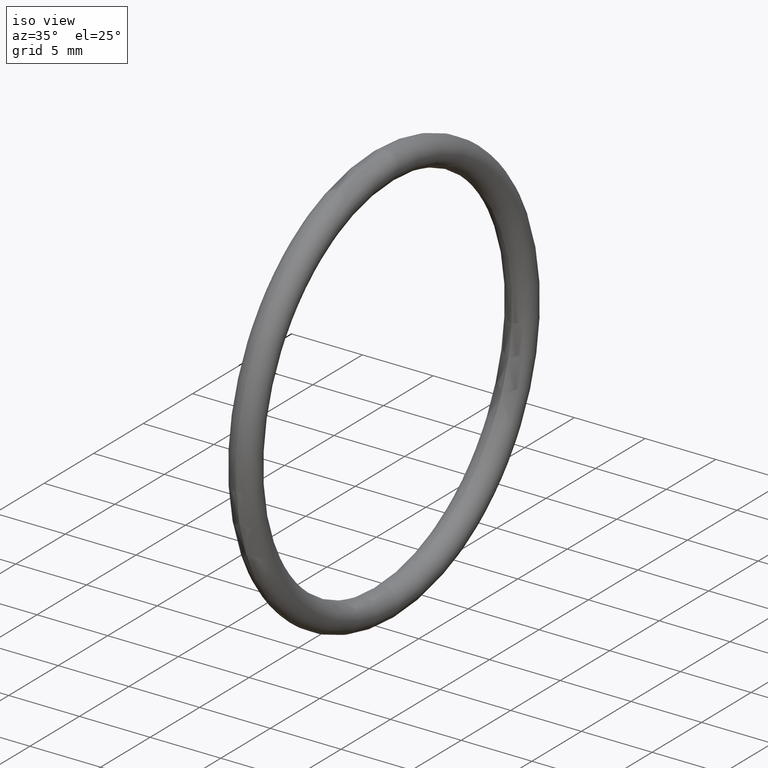
[diagram: clean part render]
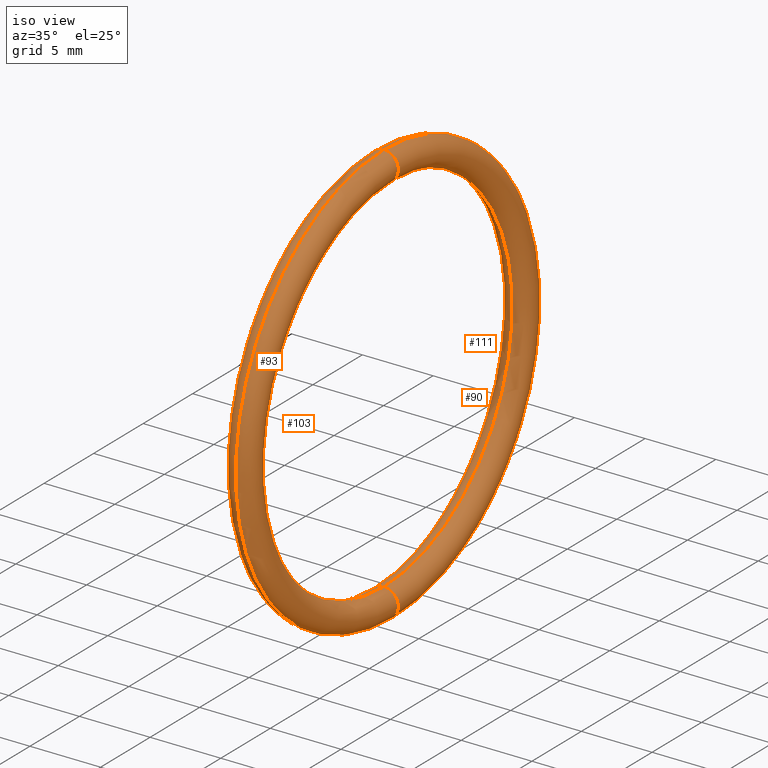
[diagram: same view with one multi-face feature highlighted, each face labeled with its STEP entity id]
A machine part, iso view. The highlighted faces form ONE feature: a constant-radius fillet chain: 4 tangent blend faces with common blend radius 1.016 mm. The faces share edges in the B-rep.
Their STEP definitions:
[1] entity #90 (Torus):
#84 = CARTESIAN_POINT ( 'NONE',  ( 0.1000000000000000700, 0.0000000000000000000, 0.0000000000000000000 ) ) ;
#87 = DIRECTION ( 'NONE',  ( -1.000000000000000000, -0.0000000000000000000, -0.0000000000000000000 ) ) ;
#88 = DIRECTION ( 'NONE',  ( 0.0000000000000000000, 0.0000000000000000000, 1.000000000000000000 ) ) ;
#89 = EDGE_LOOP ( 'NONE', ( #116, #115, #104, #105 ) ) ;
#90 = ADVANCED_FACE ( 'NONE', ( #173 ), #159, .T. ) ;
#95 = EDGE_CURVE ( 'NONE', #97, #106, #129, .T. ) ;
#97 = VERTEX_POINT ( 'NONE', #148 ) ;
#98 = VERTEX_POINT ( 'NONE', #147 ) ;
#99 = VERTEX_POINT ( 'NONE', #146 ) ;
#104 = ORIENTED_EDGE ( 'NONE', *, *, #109, .T. ) ;
#105 = ORIENTED_EDGE ( 'NONE', *, *, #113, .F. ) ;
#106 = VERTEX_POINT ( 'NONE', #162 ) ;
#109 = EDGE_CURVE ( 'NONE', #98, #99, #161, .T. ) ;
#113 = EDGE_CURVE ( 'NONE', #106, #99, #139, .T. ) ;
#114 = EDGE_CURVE ( 'NONE', #97, #98, #174, .T. ) ;
#115 = ORIENTED_EDGE ( 'NONE', *, *, #114, .T. ) ;
#116 = ORIENTED_EDGE ( 'NONE', *, *, #95, .F. ) ;
#124 = AXIS2_PLACEMENT_3D ( 'NONE', #130, #168, #160 ) ;
#125 = DIRECTION ( 'NONE',  ( 0.0000000000000000000, 0.0000000000000000000, -1.000000000000000000 ) ) ;
#126 = DIRECTION ( 'NONE',  ( 0.0000000000000000000, -1.000000000000000000, 0.0000000000000000000 ) ) ;
#127 = CARTESIAN_POINT ( 'NONE',  ( 0.1000000000000000700, 0.0000000000000000000, 0.5500000000000000400 ) ) ;
#128 = AXIS2_PLACEMENT_3D ( 'NONE', #127, #126, #125 ) ;
#129 = CIRCLE ( 'NONE', #128, 0.03999999999999998000 ) ;
#130 = CARTESIAN_POINT ( 'NONE',  ( 0.1000000000000000700, 0.0000000000000000000, 0.0000000000000000000 ) ) ;
#134 = AXIS2_PLACEMENT_3D ( 'NONE', #84, #87, #88 ) ;
#139 = CIRCLE ( 'NONE', #134, 0.5100000000000000100 ) ;
#142 = DIRECTION ( 'NONE',  ( 0.0000000000000000000, -1.224646799147353000E-016, 1.000000000000000000 ) ) ;
#143 = DIRECTION ( 'NONE',  ( -0.0000000000000000000, 1.000000000000000000, 1.224646799147353200E-016 ) ) ;
#144 = CARTESIAN_POINT ( 'NONE',  ( 0.1000000000000000700, 6.735557395310442500E-017, -0.5500000000000000400 ) ) ;
#145 = AXIS2_PLACEMENT_3D ( 'NONE', #144, #143, #142 ) ;
#146 = CARTESIAN_POINT ( 'NONE',  ( 0.1000000000000000700, 6.245698675651502300E-017, -0.5100000000000000100 ) ) ;
#147 = CARTESIAN_POINT ( 'NONE',  ( 0.1000000000000000700, 7.225416114969383900E-017, -0.5899999999999999700 ) ) ;
#148 = CARTESIAN_POINT ( 'NONE',  ( 0.1000000000000000700, 0.0000000000000000000, 0.5899999999999999700 ) ) ;
#159 = TOROIDAL_SURFACE ( 'NONE', #124, 0.5500000000000000400, 0.04000000000000000100 ) ;
#160 = DIRECTION ( 'NONE',  ( 0.0000000000000000000, 0.0000000000000000000, 1.000000000000000000 ) ) ;
#161 = CIRCLE ( 'NONE', #145, 0.03999999999999998000 ) ;
#162 = CARTESIAN_POINT ( 'NONE',  ( 0.1000000000000000700, 0.0000000000000000000, 0.5100000000000000100 ) ) ;
#168 = DIRECTION ( 'NONE',  ( -1.000000000000000000, -0.0000000000000000000, -0.0000000000000000000 ) ) ;
#173 = FACE_OUTER_BOUND ( 'NONE', #89, .T. ) ;
#174 = CIRCLE ( 'NONE', #179, 0.5899999999999999700 ) ;
#176 = DIRECTION ( 'NONE',  ( 0.0000000000000000000, 0.0000000000000000000, 1.000000000000000000 ) ) ;
#177 = DIRECTION ( 'NONE',  ( -1.000000000000000000, -0.0000000000000000000, -0.0000000000000000000 ) ) ;
#178 = CARTESIAN_POINT ( 'NONE',  ( 0.1000000000000000700, 0.0000000000000000000, 0.0000000000000000000 ) ) ;
#179 = AXIS2_PLACEMENT_3D ( 'NONE', #178, #177, #176 ) ;
[2] entity #111 (Torus):
#78 = ORIENTED_EDGE ( 'NONE', *, *, #79, .T. ) ;
#79 = EDGE_CURVE ( 'NONE', #99, #98, #120, .T. ) ;
#84 = CARTESIAN_POINT ( 'NONE',  ( 0.1000000000000000700, 0.0000000000000000000, 0.0000000000000000000 ) ) ;
#85 = DIRECTION ( 'NONE',  ( 0.0000000000000000000, -1.224646799147353000E-016, 1.000000000000000000 ) ) ;
#87 = DIRECTION ( 'NONE',  ( -1.000000000000000000, -0.0000000000000000000, -0.0000000000000000000 ) ) ;
#88 = DIRECTION ( 'NONE',  ( 0.0000000000000000000, 0.0000000000000000000, 1.000000000000000000 ) ) ;
#91 = EDGE_LOOP ( 'NONE', ( #110, #101, #100, #78 ) ) ;
#97 = VERTEX_POINT ( 'NONE', #148 ) ;
#98 = VERTEX_POINT ( 'NONE', #147 ) ;
#99 = VERTEX_POINT ( 'NONE', #146 ) ;
#100 = ORIENTED_EDGE ( 'NONE', *, *, #113, .T. ) ;
#101 = ORIENTED_EDGE ( 'NONE', *, *, #102, .F. ) ;
#102 = EDGE_CURVE ( 'NONE', #106, #97, #157, .T. ) ;
#106 = VERTEX_POINT ( 'NONE', #162 ) ;
#110 = ORIENTED_EDGE ( 'NONE', *, *, #114, .F. ) ;
#111 = ADVANCED_FACE ( 'NONE', ( #141 ), #140, .T. ) ;
#113 = EDGE_CURVE ( 'NONE', #106, #99, #139, .T. ) ;
#114 = EDGE_CURVE ( 'NONE', #97, #98, #174, .T. ) ;
#120 = CIRCLE ( 'NONE', #123, 0.03999999999999998000 ) ;
#121 = DIRECTION ( 'NONE',  ( -0.0000000000000000000, 1.000000000000000000, 1.224646799147353200E-016 ) ) ;
#122 = CARTESIAN_POINT ( 'NONE',  ( 0.1000000000000000700, 6.735557395310442500E-017, -0.5500000000000000400 ) ) ;
#123 = AXIS2_PLACEMENT_3D ( 'NONE', #122, #121, #85 ) ;
#134 = AXIS2_PLACEMENT_3D ( 'NONE', #84, #87, #88 ) ;
#135 = DIRECTION ( 'NONE',  ( 0.0000000000000000000, 0.0000000000000000000, 1.000000000000000000 ) ) ;
#136 = DIRECTION ( 'NONE',  ( -1.000000000000000000, -0.0000000000000000000, -0.0000000000000000000 ) ) ;
#137 = CARTESIAN_POINT ( 'NONE',  ( 0.1000000000000000700, 0.0000000000000000000, 0.0000000000000000000 ) ) ;
#138 = AXIS2_PLACEMENT_3D ( 'NONE', #137, #136, #135 ) ;
#139 = CIRCLE ( 'NONE', #134, 0.5100000000000000100 ) ;
#140 = TOROIDAL_SURFACE ( 'NONE', #138, 0.5500000000000000400, 0.04000000000000000100 ) ;
#141 = FACE_OUTER_BOUND ( 'NONE', #91, .T. ) ;
#146 = CARTESIAN_POINT ( 'NONE',  ( 0.1000000000000000700, 6.245698675651502300E-017, -0.5100000000000000100 ) ) ;
#147 = CARTESIAN_POINT ( 'NONE',  ( 0.1000000000000000700, 7.225416114969383900E-017, -0.5899999999999999700 ) ) ;
#148 = CARTESIAN_POINT ( 'NONE',  ( 0.1000000000000000700, 0.0000000000000000000, 0.5899999999999999700 ) ) ;
#153 = DIRECTION ( 'NONE',  ( 0.0000000000000000000, 0.0000000000000000000, -1.000000000000000000 ) ) ;
#154 = DIRECTION ( 'NONE',  ( 0.0000000000000000000, -1.000000000000000000, 0.0000000000000000000 ) ) ;
#155 = CARTESIAN_POINT ( 'NONE',  ( 0.1000000000000000700, 0.0000000000000000000, 0.5500000000000000400 ) ) ;
#156 = AXIS2_PLACEMENT_3D ( 'NONE', #155, #154, #153 ) ;
#157 = CIRCLE ( 'NONE', #156, 0.03999999999999998000 ) ;
#162 = CARTESIAN_POINT ( 'NONE',  ( 0.1000000000000000700, 0.0000000000000000000, 0.5100000000000000100 ) ) ;
#174 = CIRCLE ( 'NONE', #179, 0.5899999999999999700 ) ;
#176 = DIRECTION ( 'NONE',  ( 0.0000000000000000000, 0.0000000000000000000, 1.000000000000000000 ) ) ;
#177 = DIRECTION ( 'NONE',  ( -1.000000000000000000, -0.0000000000000000000, -0.0000000000000000000 ) ) ;
#178 = CARTESIAN_POINT ( 'NONE',  ( 0.1000000000000000700, 0.0000000000000000000, 0.0000000000000000000 ) ) ;
#179 = AXIS2_PLACEMENT_3D ( 'NONE', #178, #177, #176 ) ;
[3] entity #103 (Torus):
#79 = EDGE_CURVE ( 'NONE', #99, #98, #120, .T. ) ;
#80 = EDGE_LOOP ( 'NONE', ( #119, #86, #83, #82 ) ) ;
#82 = ORIENTED_EDGE ( 'NONE', *, *, #102, .T. ) ;
#83 = ORIENTED_EDGE ( 'NONE', *, *, #117, .T. ) ;
#85 = DIRECTION ( 'NONE',  ( 0.0000000000000000000, -1.224646799147353000E-016, 1.000000000000000000 ) ) ;
#86 = ORIENTED_EDGE ( 'NONE', *, *, #79, .F. ) ;
#96 = EDGE_CURVE ( 'NONE', #98, #97, #172, .T. ) ;
#97 = VERTEX_POINT ( 'NONE', #148 ) ;
#98 = VERTEX_POINT ( 'NONE', #147 ) ;
#99 = VERTEX_POINT ( 'NONE', #146 ) ;
#102 = EDGE_CURVE ( 'NONE', #106, #97, #157, .T. ) ;
#103 = ADVANCED_FACE ( 'NONE', ( #158 ), #166, .T. ) ;
#106 = VERTEX_POINT ( 'NONE', #162 ) ;
#117 = EDGE_CURVE ( 'NONE', #99, #106, #183, .T. ) ;
#119 = ORIENTED_EDGE ( 'NONE', *, *, #96, .F. ) ;
#120 = CIRCLE ( 'NONE', #123, 0.03999999999999998000 ) ;
#121 = DIRECTION ( 'NONE',  ( -0.0000000000000000000, 1.000000000000000000, 1.224646799147353200E-016 ) ) ;
#122 = CARTESIAN_POINT ( 'NONE',  ( 0.1000000000000000700, 6.735557395310442500E-017, -0.5500000000000000400 ) ) ;
#123 = AXIS2_PLACEMENT_3D ( 'NONE', #122, #121, #85 ) ;
#146 = CARTESIAN_POINT ( 'NONE',  ( 0.1000000000000000700, 6.245698675651502300E-017, -0.5100000000000000100 ) ) ;
#147 = CARTESIAN_POINT ( 'NONE',  ( 0.1000000000000000700, 7.225416114969383900E-017, -0.5899999999999999700 ) ) ;
#148 = CARTESIAN_POINT ( 'NONE',  ( 0.1000000000000000700, 0.0000000000000000000, 0.5899999999999999700 ) ) ;
#149 = DIRECTION ( 'NONE',  ( 0.0000000000000000000, 0.0000000000000000000, 1.000000000000000000 ) ) ;
#150 = DIRECTION ( 'NONE',  ( -1.000000000000000000, -0.0000000000000000000, -0.0000000000000000000 ) ) ;
#153 = DIRECTION ( 'NONE',  ( 0.0000000000000000000, 0.0000000000000000000, -1.000000000000000000 ) ) ;
#154 = DIRECTION ( 'NONE',  ( 0.0000000000000000000, -1.000000000000000000, 0.0000000000000000000 ) ) ;
#155 = CARTESIAN_POINT ( 'NONE',  ( 0.1000000000000000700, 0.0000000000000000000, 0.5500000000000000400 ) ) ;
#156 = AXIS2_PLACEMENT_3D ( 'NONE', #155, #154, #153 ) ;
#157 = CIRCLE ( 'NONE', #156, 0.03999999999999998000 ) ;
#158 = FACE_OUTER_BOUND ( 'NONE', #80, .T. ) ;
#162 = CARTESIAN_POINT ( 'NONE',  ( 0.1000000000000000700, 0.0000000000000000000, 0.5100000000000000100 ) ) ;
#163 = DIRECTION ( 'NONE',  ( 0.0000000000000000000, 0.0000000000000000000, 1.000000000000000000 ) ) ;
#164 = DIRECTION ( 'NONE',  ( -1.000000000000000000, -0.0000000000000000000, -0.0000000000000000000 ) ) ;
#165 = AXIS2_PLACEMENT_3D ( 'NONE', #167, #164, #163 ) ;
#166 = TOROIDAL_SURFACE ( 'NONE', #165, 0.5500000000000000400, 0.04000000000000000100 ) ;
#167 = CARTESIAN_POINT ( 'NONE',  ( 0.1000000000000000700, 0.0000000000000000000, 0.0000000000000000000 ) ) ;
#170 = CARTESIAN_POINT ( 'NONE',  ( 0.1000000000000000700, 0.0000000000000000000, 0.0000000000000000000 ) ) ;
#171 = AXIS2_PLACEMENT_3D ( 'NONE', #170, #150, #149 ) ;
#172 = CIRCLE ( 'NONE', #171, 0.5899999999999999700 ) ;
#175 = CARTESIAN_POINT ( 'NONE',  ( 0.1000000000000000700, 0.0000000000000000000, 0.0000000000000000000 ) ) ;
#180 = DIRECTION ( 'NONE',  ( 0.0000000000000000000, 0.0000000000000000000, 1.000000000000000000 ) ) ;
#181 = DIRECTION ( 'NONE',  ( -1.000000000000000000, -0.0000000000000000000, -0.0000000000000000000 ) ) ;
#182 = AXIS2_PLACEMENT_3D ( 'NONE', #175, #181, #180 ) ;
#183 = CIRCLE ( 'NONE', #182, 0.5100000000000000100 ) ;
[4] entity #93 (Torus):
#92 = ORIENTED_EDGE ( 'NONE', *, *, #117, .F. ) ;
#93 = ADVANCED_FACE ( 'NONE', ( #169 ), #132, .T. ) ;
#94 = EDGE_LOOP ( 'NONE', ( #108, #107, #112, #92 ) ) ;
#95 = EDGE_CURVE ( 'NONE', #97, #106, #129, .T. ) ;
#96 = EDGE_CURVE ( 'NONE', #98, #97, #172, .T. ) ;
#97 = VERTEX_POINT ( 'NONE', #148 ) ;
#98 = VERTEX_POINT ( 'NONE', #147 ) ;
#99 = VERTEX_POINT ( 'NONE', #146 ) ;
#106 = VERTEX_POINT ( 'NONE', #162 ) ;
#107 = ORIENTED_EDGE ( 'NONE', *, *, #96, .T. ) ;
#108 = ORIENTED_EDGE ( 'NONE', *, *, #109, .F. ) ;
#109 = EDGE_CURVE ( 'NONE', #98, #99, #161, .T. ) ;
#112 = ORIENTED_EDGE ( 'NONE', *, *, #95, .T. ) ;
#117 = EDGE_CURVE ( 'NONE', #99, #106, #183, .T. ) ;
#125 = DIRECTION ( 'NONE',  ( 0.0000000000000000000, 0.0000000000000000000, -1.000000000000000000 ) ) ;
#126 = DIRECTION ( 'NONE',  ( 0.0000000000000000000, -1.000000000000000000, 0.0000000000000000000 ) ) ;
#127 = CARTESIAN_POINT ( 'NONE',  ( 0.1000000000000000700, 0.0000000000000000000, 0.5500000000000000400 ) ) ;
#128 = AXIS2_PLACEMENT_3D ( 'NONE', #127, #126, #125 ) ;
#129 = CIRCLE ( 'NONE', #128, 0.03999999999999998000 ) ;
#131 = DIRECTION ( 'NONE',  ( 0.0000000000000000000, 0.0000000000000000000, 1.000000000000000000 ) ) ;
#132 = TOROIDAL_SURFACE ( 'NONE', #152, 0.5500000000000000400, 0.04000000000000000100 ) ;
#133 = DIRECTION ( 'NONE',  ( -1.000000000000000000, -0.0000000000000000000, -0.0000000000000000000 ) ) ;
#142 = DIRECTION ( 'NONE',  ( 0.0000000000000000000, -1.224646799147353000E-016, 1.000000000000000000 ) ) ;
#143 = DIRECTION ( 'NONE',  ( -0.0000000000000000000, 1.000000000000000000, 1.224646799147353200E-016 ) ) ;
#144 = CARTESIAN_POINT ( 'NONE',  ( 0.1000000000000000700, 6.735557395310442500E-017, -0.5500000000000000400 ) ) ;
#145 = AXIS2_PLACEMENT_3D ( 'NONE', #144, #143, #142 ) ;
#146 = CARTESIAN_POINT ( 'NONE',  ( 0.1000000000000000700, 6.245698675651502300E-017, -0.5100000000000000100 ) ) ;
#147 = CARTESIAN_POINT ( 'NONE',  ( 0.1000000000000000700, 7.225416114969383900E-017, -0.5899999999999999700 ) ) ;
#148 = CARTESIAN_POINT ( 'NONE',  ( 0.1000000000000000700, 0.0000000000000000000, 0.5899999999999999700 ) ) ;
#149 = DIRECTION ( 'NONE',  ( 0.0000000000000000000, 0.0000000000000000000, 1.000000000000000000 ) ) ;
#150 = DIRECTION ( 'NONE',  ( -1.000000000000000000, -0.0000000000000000000, -0.0000000000000000000 ) ) ;
#151 = CARTESIAN_POINT ( 'NONE',  ( 0.1000000000000000700, 0.0000000000000000000, 0.0000000000000000000 ) ) ;
#152 = AXIS2_PLACEMENT_3D ( 'NONE', #151, #133, #131 ) ;
#161 = CIRCLE ( 'NONE', #145, 0.03999999999999998000 ) ;
#162 = CARTESIAN_POINT ( 'NONE',  ( 0.1000000000000000700, 0.0000000000000000000, 0.5100000000000000100 ) ) ;
#169 = FACE_OUTER_BOUND ( 'NONE', #94, .T. ) ;
#170 = CARTESIAN_POINT ( 'NONE',  ( 0.1000000000000000700, 0.0000000000000000000, 0.0000000000000000000 ) ) ;
#171 = AXIS2_PLACEMENT_3D ( 'NONE', #170, #150, #149 ) ;
#172 = CIRCLE ( 'NONE', #171, 0.5899999999999999700 ) ;
#175 = CARTESIAN_POINT ( 'NONE',  ( 0.1000000000000000700, 0.0000000000000000000, 0.0000000000000000000 ) ) ;
#180 = DIRECTION ( 'NONE',  ( 0.0000000000000000000, 0.0000000000000000000, 1.000000000000000000 ) ) ;
#181 = DIRECTION ( 'NONE',  ( -1.000000000000000000, -0.0000000000000000000, -0.0000000000000000000 ) ) ;
#182 = AXIS2_PLACEMENT_3D ( 'NONE', #175, #181, #180 ) ;
#183 = CIRCLE ( 'NONE', #182, 0.5100000000000000100 ) ;